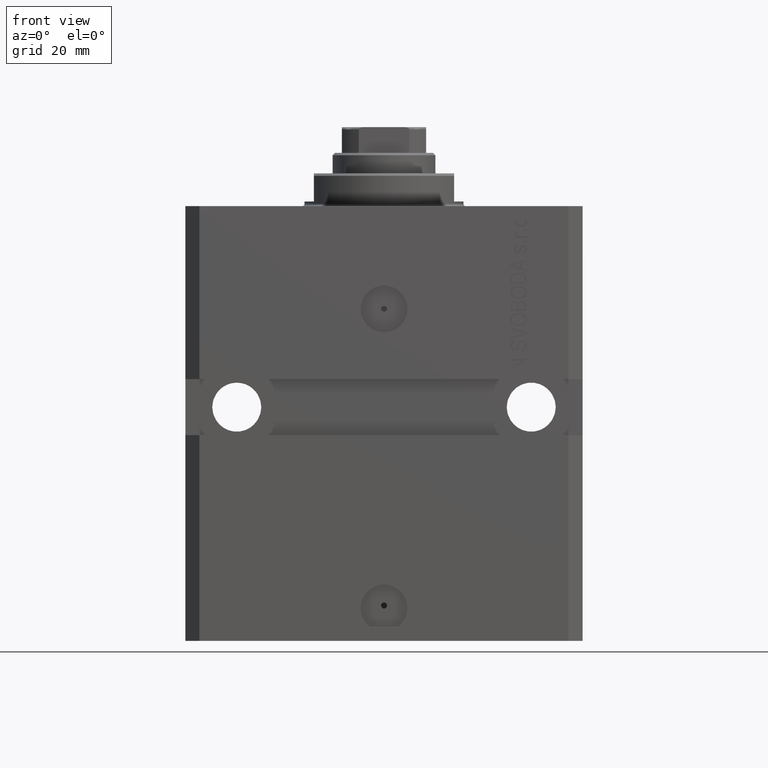
[diagram: clean part render]
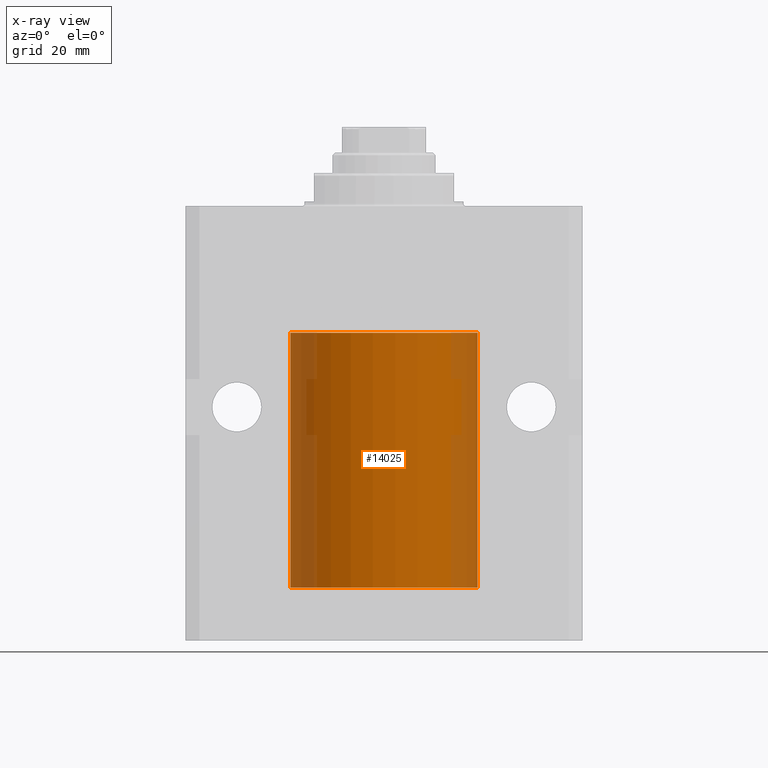
[diagram: x-ray — body ghosted, one internal face saturated and labeled with its STEP entity id]
A machine part, front view, then the same camera in x-ray: the body is ghosted and one INTERNAL B-rep face — a face not visible from any outside direction — is saturated and labeled: STEP entity #14025.
In plain terms, the highlighted cylindrical surface (partial cylindrical patch) has radius 20 mm, axis along (0, 0, 1).
Its self-contained STEP definition (entity closure, byte-faithful):
#338 = CARTESIAN_POINT ( 'NONE',  ( 20.00000000000000000, -0.1650670266421430665, -79.62500000000002842 ) ) ;
#558 = EDGE_CURVE ( 'NONE', #1468, #21512, #24605, .T. ) ;
#681 = CIRCLE ( 'NONE', #9938, 20.00000000000000000 ) ;
#815 = CARTESIAN_POINT ( 'NONE',  ( 19.99023198964933812, -0.6250000000000827116, -79.00000000000000000 ) ) ;
#1468 = VERTEX_POINT ( 'NONE', #21481 ) ;
#1623 = CARTESIAN_POINT ( 'NONE',  ( 20.00000000000000000, 0.000000000000000000, -81.60000000000000853 ) ) ;
#2119 = CYLINDRICAL_SURFACE ( 'NONE', #26965, 20.00000000000000000 ) ;
#2259 = DIRECTION ( 'NONE',  ( 1.000000000000000000, 0.000000000000000000, 0.000000000000000000 ) ) ;
#3878 = ORIENTED_EDGE ( 'NONE', *, *, #14050, .T. ) ;
#6956 = CARTESIAN_POINT ( 'NONE',  ( -20.00000000000000000, 2.449293598294706513E-15, -27.10000000000000142 ) ) ;
#7526 = ORIENTED_EDGE ( 'NONE', *, *, #558, .T. ) ;
#8184 = ORIENTED_EDGE ( 'NONE', *, *, #9613, .T. ) ;
#8342 = CARTESIAN_POINT ( 'NONE',  ( 20.00000000000000000, 0.000000000000000000, -27.10000000000000142 ) ) ;
#9613 = EDGE_CURVE ( 'NONE', #21512, #25337, #36187, .T. ) ;
#9938 = AXIS2_PLACEMENT_3D ( 'NONE', #32017, #46711, #35390 ) ;
#10061 = DIRECTION ( 'NONE',  ( -0.000000000000000000, -0.000000000000000000, 1.000000000000000000 ) ) ;
#10208 = VERTEX_POINT ( 'NONE', #36713 ) ;
#10393 = CARTESIAN_POINT ( 'NONE',  ( 20.00000000000010303, 3.555666352936568165E-13, -78.37499999999667466 ) ) ;
#11890 = CARTESIAN_POINT ( 'NONE',  ( 19.99023198964934167, -0.6250000000000828226, -79.16479419982725574 ) ) ;
#14007 = CARTESIAN_POINT ( 'NONE',  ( 19.99766790699043995, -0.3264769477312362556, -78.44266063830006885 ) ) ;
#14025 = ADVANCED_FACE ( 'NONE', ( #32179 ), #2119, .F. ) ;
#14050 = EDGE_CURVE ( 'NONE', #21198, #20557, #14146, .T. ) ;
#14146 = B_SPLINE_CURVE_WITH_KNOTS ( 'NONE', 3,
 ( #815, #11890, #15041, #22483, #338, #33786 ),
 .UNSPECIFIED., .F., .F.,
 ( 4, 2, 4 ),
 ( 0.002931526102908805446, 0.003419696219975630440, 0.003907866337042455000 ),
 .UNSPECIFIED. ) ;
#15041 = CARTESIAN_POINT ( 'NONE',  ( 19.99256494106949944, -0.5573539455062719306, -79.32646132359609226 ) ) ;
#15201 = B_SPLINE_CURVE_WITH_KNOTS ( 'NONE', 3,
 ( #10393, #46973, #14007, #28666, #25057, #37311 ),
 .UNSPECIFIED., .F., .F.,
 ( 4, 2, 4 ),
 ( 0.001954154509844075859, 0.002442840306376440652, 0.002931526102908805446 ),
 .UNSPECIFIED. ) ;
#15780 = ORIENTED_EDGE ( 'NONE', *, *, #46988, .F. ) ;
#16889 = EDGE_CURVE ( 'NONE', #27054, #20557, #34589, .T. ) ;
#20557 = VERTEX_POINT ( 'NONE', #42347 ) ;
#20864 = EDGE_LOOP ( 'NONE', ( #15780, #7526, #8184, #44589, #25534, #3878, #38134 ) ) ;
#21198 = VERTEX_POINT ( 'NONE', #42886 ) ;
#21481 = CARTESIAN_POINT ( 'NONE',  ( -20.00000000000000000, 2.449293598294706513E-15, -81.60000000000000853 ) ) ;
#21512 = VERTEX_POINT ( 'NONE', #6956 ) ;
#22483 = CARTESIAN_POINT ( 'NONE',  ( 19.99766246719553209, -0.3267907458473873761, -79.55716086079694094 ) ) ;
#24605 = LINE ( 'NONE', #46992, #27391 ) ;
#24860 = CARTESIAN_POINT ( 'NONE',  ( 0.000000000000000000, 0.000000000000000000, -27.10000000000000142 ) ) ;
#25057 = CARTESIAN_POINT ( 'NONE',  ( 19.99023198964933812, -0.6250000000000828226, -78.83503171949485022 ) ) ;
#25337 = VERTEX_POINT ( 'NONE', #8342 ) ;
#25534 = ORIENTED_EDGE ( 'NONE', *, *, #34329, .T. ) ;
#26965 = AXIS2_PLACEMENT_3D ( 'NONE', #42553, #10061, #30639 ) ;
#27054 = VERTEX_POINT ( 'NONE', #27650 ) ;
#27391 = VECTOR ( 'NONE', #43375, 1000.000000000000000 ) ;
#27650 = CARTESIAN_POINT ( 'NONE',  ( 20.00000000000000000, 0.000000000000000000, -81.60000000000000853 ) ) ;
#28495 = AXIS2_PLACEMENT_3D ( 'NONE', #24860, #43642, #2259 ) ;
#28666 = CARTESIAN_POINT ( 'NONE',  ( 19.99257096259849931, -0.5571491910957669935, -78.67319862246098694 ) ) ;
#29264 = LINE ( 'NONE', #43962, #36539 ) ;
#30639 = DIRECTION ( 'NONE',  ( 1.000000000000000000, 0.000000000000000000, 0.000000000000000000 ) ) ;
#32017 = CARTESIAN_POINT ( 'NONE',  ( 0.000000000000000000, 0.000000000000000000, -81.60000000000000853 ) ) ;
#32179 = FACE_OUTER_BOUND ( 'NONE', #20864, .T. ) ;
#33786 = CARTESIAN_POINT ( 'NONE',  ( 20.00000000000000000, -4.058908006348821872E-15, -79.62500000000000000 ) ) ;
#34329 = EDGE_CURVE ( 'NONE', #10208, #21198, #15201, .T. ) ;
#34589 = LINE ( 'NONE', #1623, #43965 ) ;
#34854 = EDGE_CURVE ( 'NONE', #10208, #25337, #29264, .T. ) ;
#35390 = DIRECTION ( 'NONE',  ( 1.000000000000000000, 0.000000000000000000, 0.000000000000000000 ) ) ;
#35654 = DIRECTION ( 'NONE',  ( -0.000000000000000000, -0.000000000000000000, 1.000000000000000000 ) ) ;
#36187 = CIRCLE ( 'NONE', #28495, 20.00000000000000000 ) ;
#36539 = VECTOR ( 'NONE', #35654, 1000.000000000000000 ) ;
#36713 = CARTESIAN_POINT ( 'NONE',  ( 20.00000000000010303, 3.555666352936568165E-13, -78.37499999999667466 ) ) ;
#37311 = CARTESIAN_POINT ( 'NONE',  ( 19.99023198964933812, -0.6250000000000827116, -79.00000000000000000 ) ) ;
#38134 = ORIENTED_EDGE ( 'NONE', *, *, #16889, .F. ) ;
#42347 = CARTESIAN_POINT ( 'NONE',  ( 20.00000000000000000, -4.058908006348821872E-15, -79.62500000000000000 ) ) ;
#42553 = CARTESIAN_POINT ( 'NONE',  ( 0.000000000000000000, 0.000000000000000000, -81.60000000000000853 ) ) ;
#42886 = CARTESIAN_POINT ( 'NONE',  ( 19.99023198964933812, -0.6250000000000827116, -79.00000000000000000 ) ) ;
#43375 = DIRECTION ( 'NONE',  ( -0.000000000000000000, -0.000000000000000000, 1.000000000000000000 ) ) ;
#43642 = DIRECTION ( 'NONE',  ( 0.000000000000000000, 0.000000000000000000, 1.000000000000000000 ) ) ;
#43962 = CARTESIAN_POINT ( 'NONE',  ( 20.00000000000000000, 0.000000000000000000, -81.60000000000000853 ) ) ;
#43965 = VECTOR ( 'NONE', #46854, 1000.000000000000000 ) ;
#44589 = ORIENTED_EDGE ( 'NONE', *, *, #34854, .F. ) ;
#46711 = DIRECTION ( 'NONE',  ( 0.000000000000000000, 0.000000000000000000, 1.000000000000000000 ) ) ;
#46854 = DIRECTION ( 'NONE',  ( -0.000000000000000000, -0.000000000000000000, 1.000000000000000000 ) ) ;
#46973 = CARTESIAN_POINT ( 'NONE',  ( 20.00000000000000000, -0.1632180151482451602, -78.37499999999984368 ) ) ;
#46988 = EDGE_CURVE ( 'NONE', #1468, #27054, #681, .T. ) ;
#46992 = CARTESIAN_POINT ( 'NONE',  ( -20.00000000000000000, 2.449293598294706513E-15, -81.60000000000000853 ) ) ;